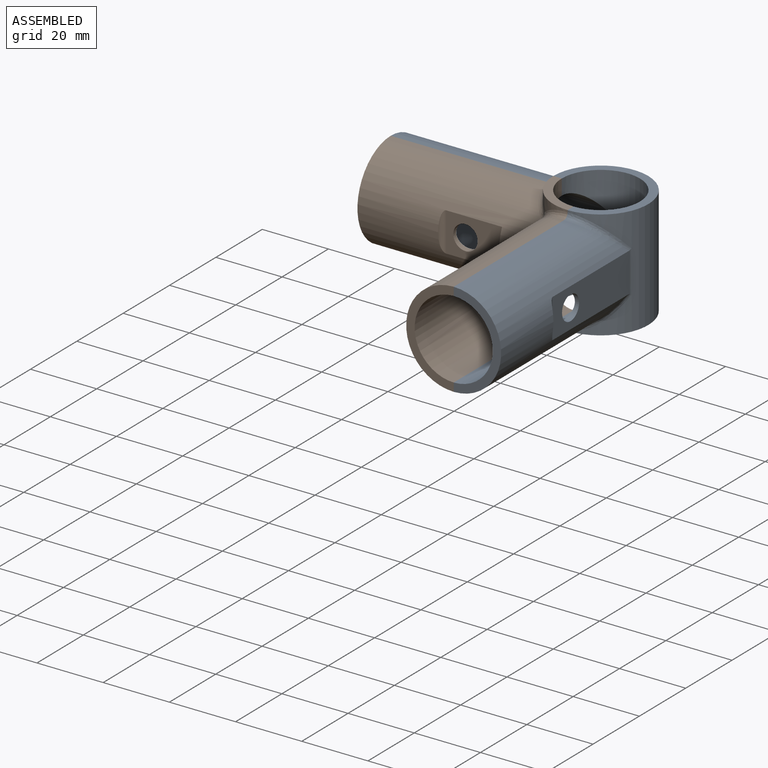
[diagram: assembled view]
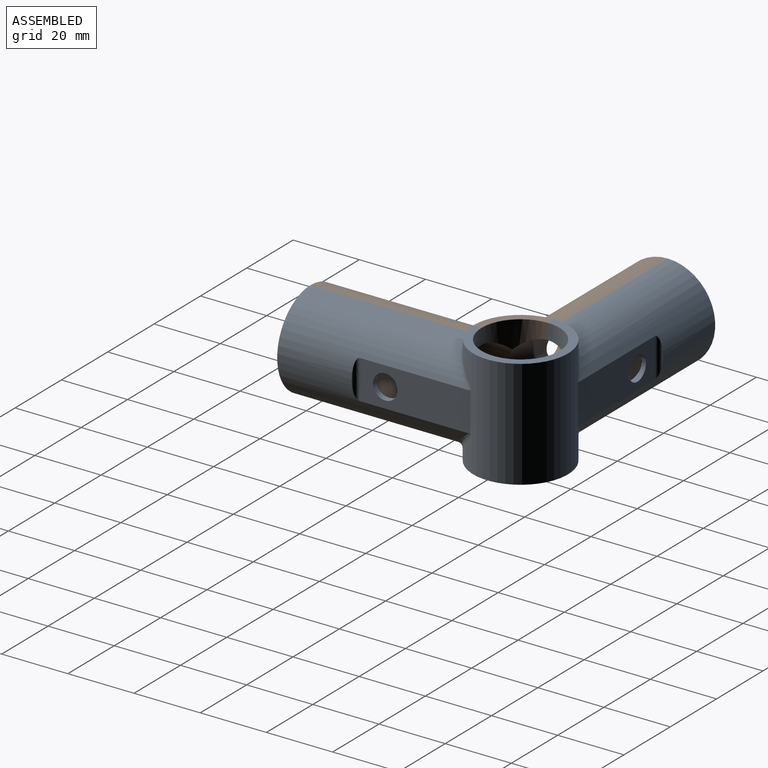
[diagram: assembled view, second angle]
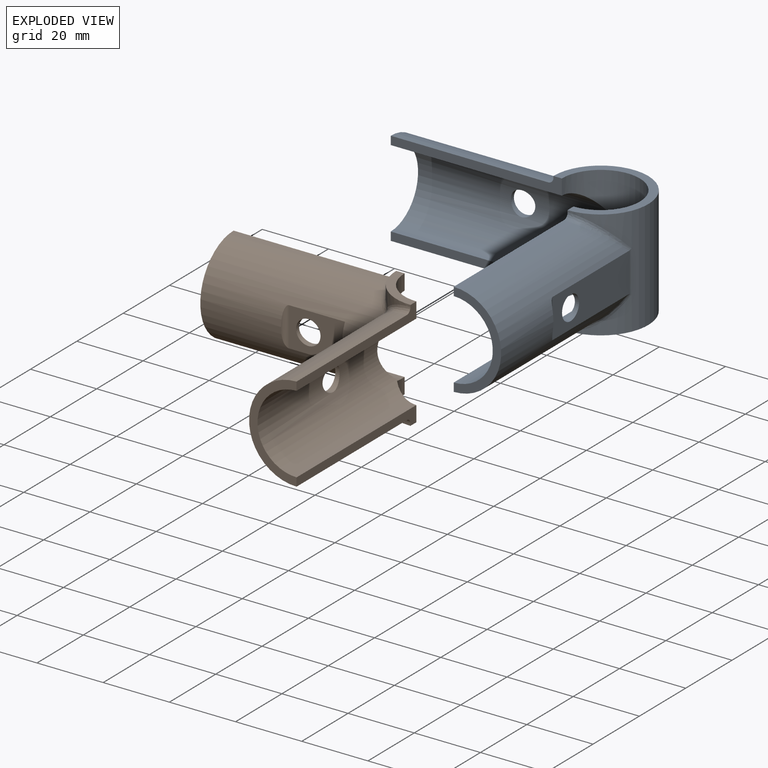
[diagram: exploded view]
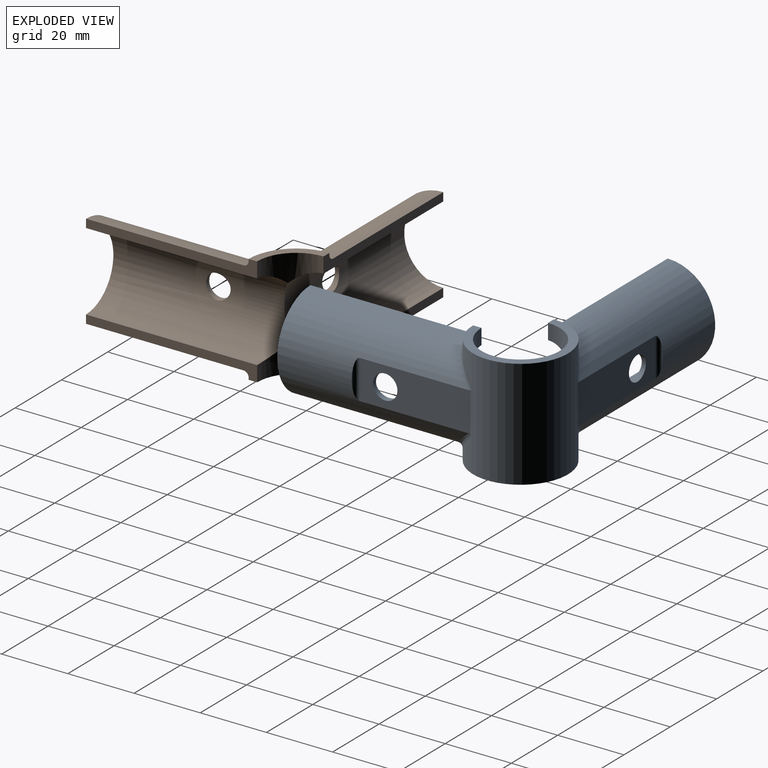
[diagram: exploded view, second angle]
ASSEMBLY  parts=2 mates=4
PART A: 26 faces, bbox 77.9x77.9x33.1 mm
  f0: plane 51.71x4.72mm, normal (-1,0,0), area 137.4mm2, adj f10,f12,f13,f18,f19,f20,f25
  f1: plane 51.71x4.72mm, normal (0,-1,0), area 137.4mm2, adj f6,f7,f8,f9,f10,f18,f25
  f2: plane 51.71x4.72mm, normal (-1,0,0), area 137.4mm2, adj f4,f5,f10,f13,f18,f19,f20
  f3: plane 51.71x4.72mm, normal (0,-1,0), area 137.4mm2, adj f5,f6,f7,f8,f10,f14,f18
  f4: bspline ~13.21x10.33mm, area 35.8mm2, adj f2,f10,f11,f13,f16
  f5: plane 28.7x28.7mm, normal (0,0,-1), area 156.6mm2, adj f2,f3,f10,f18
  f6: plane 28.7x14.35mm, normal (-1,0,0), area 104.4mm2, adj f1,f3,f7,f8
  f7: cylinder r=11.81mm len=63.5mm, axis (1,0,0), area 2097.9mm2, adj f1,f3,f6,f18,f24
  f8: cylinder r=14.35mm len=56.94mm, axis (1,0,0), area 2003.8mm2, adj f1,f3,f6,f9,f14,f22,f23
  f9: bspline ~13.21x10.33mm, area 35.8mm2, adj f1,f8,f10,f21,f23
  f10: cylinder r=14.35mm len=33.02mm, axis (0,0,1), area 1391.1mm2, adj f0,f1,f2,f3,f4,f5,f9,f11
  f11: cylinder r=1.59mm len=12.47mm, axis (0,0,-1), area 7.8mm2, adj f4,f10,f12,f16
  f12: bspline ~13.21x10.33mm, area 35.8mm2, adj f0,f10,f11,f13,f16
  f13: cylinder r=14.35mm len=56.94mm, axis (0,-1,0), area 2003.8mm2, adj f0,f2,f4,f12,f15,f16,f20
  f14: bspline ~13.21x10.33mm, area 35.8mm2, adj f3,f8,f10,f21,f23
  f15: cylinder r=1.59mm len=11.81mm, axis (0,0,-1), area 12.8mm2, adj f13,f16
  f16: plane 33.2x11.95mm, normal (1,0,0), area 348.9mm2, adj f4,f11,f12,f13,f15,f17
  f17: cylinder r=3.68mm len=7.37mm, axis (-1,0,0), area 36.2mm2, adj f16,f19
  f18: cylinder r=11.81mm len=33.02mm, axis (0,0,1), area 1279.8mm2, adj f0,f1,f2,f3,f5,f7,f19,f25
  f19: cylinder r=11.81mm len=63.5mm, axis (0,-1,0), area 2097.9mm2, adj f0,f2,f17,f18,f20
  f20: plane 28.7x14.35mm, normal (0,-1,0), area 104.4mm2, adj f0,f2,f13,f19
  f21: cylinder r=1.59mm len=12.47mm, axis (0,0,-1), area 7.8mm2, adj f9,f10,f14,f23
  f22: cylinder r=1.59mm len=11.81mm, axis (0,0,1), area 12.8mm2, adj f8,f23
  f23: plane 33.2x11.95mm, normal (0,1,0), area 348.9mm2, adj f8,f9,f14,f21,f22,f24
  f24: cylinder r=3.68mm len=7.37mm, axis (0,1,0), area 36.2mm2, adj f7,f23
  f25: plane 28.7x28.7mm, normal (0,0,1), area 156.6mm2, adj f0,f1,f10,f18
PART B: 31 faces, bbox 63.5x63.5x33 mm
  f0: plane 51.71x4.72mm, normal (0,1,0), area 137.4mm2, adj f3,f4,f5,f6,f7,f22,f29
  f1: plane 51.71x4.72mm, normal (0,1,0), area 137.4mm2, adj f2,f5,f7,f11,f12,f29,f30
  f2: bspline ~10.15x5.79mm, area 26.5mm2, adj f1,f7,f12,f18
  f3: plane 14.35x14.35mm, normal (0,0,1), area 52.2mm2, adj f0,f4,f9,f22
  f4: cylinder r=14.35mm len=14.35mm, axis (0,0,1), area 48.7mm2, adj f0,f3,f6,f9,f10
  f5: plane 28.7x14.35mm, normal (-1,0,0), area 104.4mm2, adj f0,f1,f7,f29
  f6: bspline ~10.15x5.79mm, area 26.5mm2, adj f0,f4,f7,f19
  f7: cylinder r=14.35mm len=52.23mm, axis (1,0,0), area 2018.2mm2, adj f0,f1,f2,f5,f6,f17,f25,f26
  f8: plane 51.71x4.72mm, normal (1,0,0), area 137.4mm2, adj f11,f12,f16,f20,f23,f24,f30
  f9: plane 51.71x4.72mm, normal (1,0,0), area 137.4mm2, adj f3,f4,f10,f20,f22,f23,f24
  f10: bspline ~10.15x5.79mm, area 26.5mm2, adj f4,f9,f19,f20
  f11: cylinder r=11.81mm len=11.81mm, axis (0,0,1), area 119.3mm2, adj f1,f8,f23,f29,f30
  f12: cylinder r=14.35mm len=14.35mm, axis (0,0,1), area 48.7mm2, adj f1,f2,f8,f16,f30
  f13: cylinder r=1.59mm len=11.81mm, axis (0,0,1), area 12.8mm2, adj f15,f20
  f14: plane 11.81x1.27mm, normal (0,-1,0), area 10.1mm2, adj f15,f20
  f15: plane 16.86x11.81mm, normal (-1,0,0), area 156.4mm2, adj f13,f14,f20,f21
  f16: bspline ~10.15x5.79mm, area 26.5mm2, adj f8,f12,f18,f20
  f17: bspline ~20.3x6.09mm, area 53.1mm2, adj f7,f18,f19,f20
  f18: sphere r=1.59mm, area 1.3mm2, adj f2,f16,f17
  f19: sphere r=1.59mm, area 1.3mm2, adj f6,f10,f17
  f20: cylinder r=14.35mm len=52.23mm, axis (0,-1,0), area 2018.2mm2, adj f8,f9,f10,f13,f14,f15,f16,f17
  f21: cylinder r=3.68mm len=7.37mm, axis (-1,0,0), area 36.2mm2, adj f15,f23
  f22: cylinder r=11.81mm len=11.81mm, axis (0,0,1), area 119.3mm2, adj f0,f3,f9,f23,f29
  f23: cylinder r=11.81mm len=55.15mm, axis (0,-1,0), area 1932.5mm2, adj f8,f9,f11,f21,f22,f24,f29
  f24: plane 28.7x14.35mm, normal (0,-1,0), area 104.4mm2, adj f8,f9,f20,f23
  f25: cylinder r=1.59mm len=11.81mm, axis (0,0,-1), area 12.8mm2, adj f7,f27
  f26: plane 11.81x1.27mm, normal (-1,0,0), area 10.1mm2, adj f7,f27
  f27: plane 16.86x11.81mm, normal (0,-1,0), area 156.4mm2, adj f7,f25,f26,f28
  f28: cylinder r=3.68mm len=7.37mm, axis (0,1,0), area 36.2mm2, adj f27,f29
  f29: cylinder r=11.81mm len=55.15mm, axis (1,0,0), area 1932.5mm2, adj f0,f1,f5,f11,f22,f23,f28
  f30: plane 14.35x14.35mm, normal (0,0,-1), area 52.2mm2, adj f1,f8,f11,f12
PLACE A t=(29.13,33.18,0)mm fixed
PLACE B t=(29.13,33.18,0)mm
MATE cylindrical A.f7 <-> A.f7  axis (1,0,0) through (-2.43,33.18,0)mm
MATE planar B.f24 <-> A.f20  axis (0,-1,0) through (20.77,-30.32,0)mm
MATE parallel B.f5 <-> A.f6  axis (-1,0,0) through (-34.37,24.82,0)mm
MATE cylindrical B.f20 <-> A.f13  axis (0,-1,0) through (29.13,-2.58,0)mm
